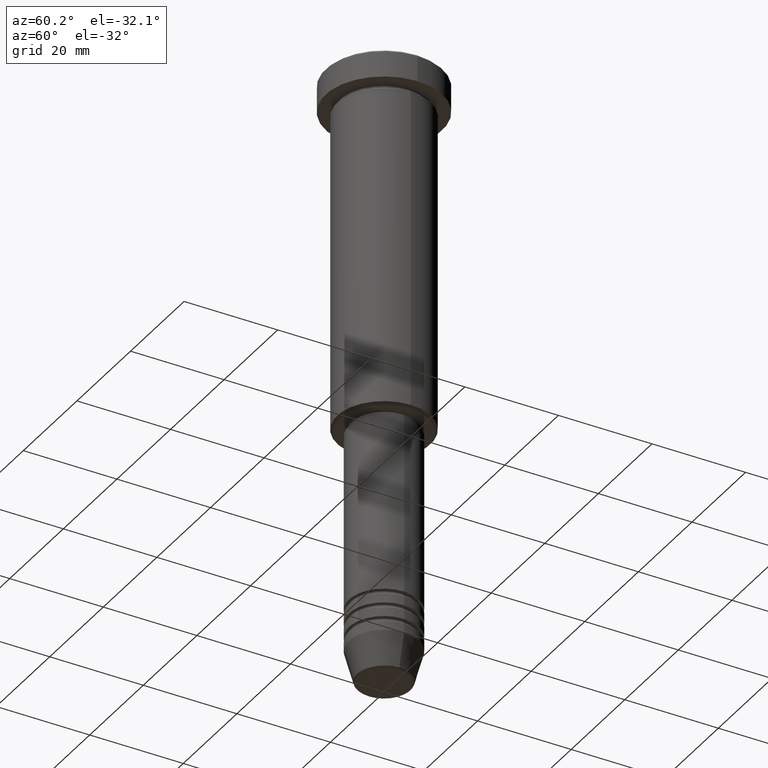
[diagram: clean part render]
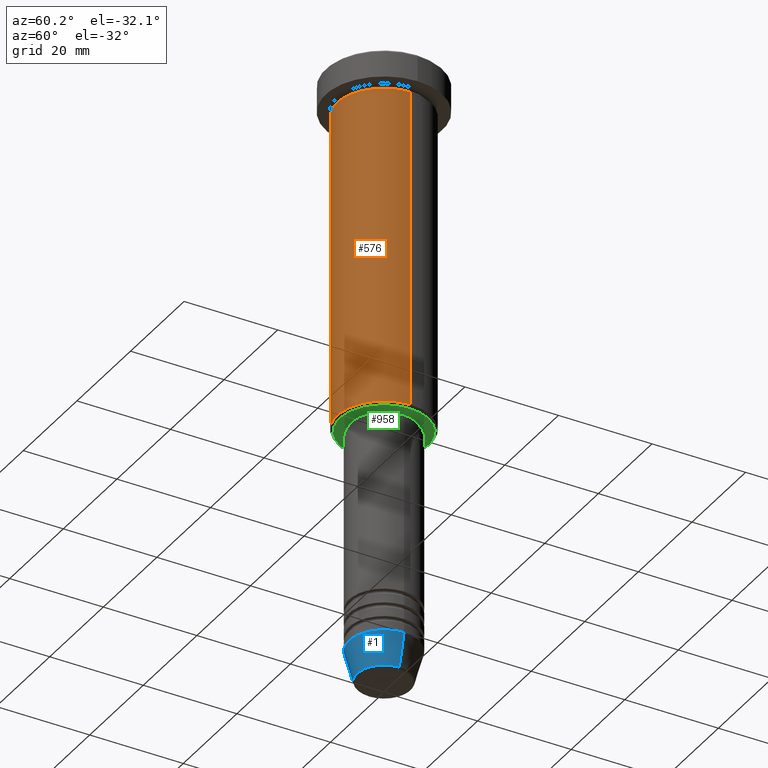
[diagram: same view with three faces highlighted in distinct colors, each labeled with its STEP entity id]
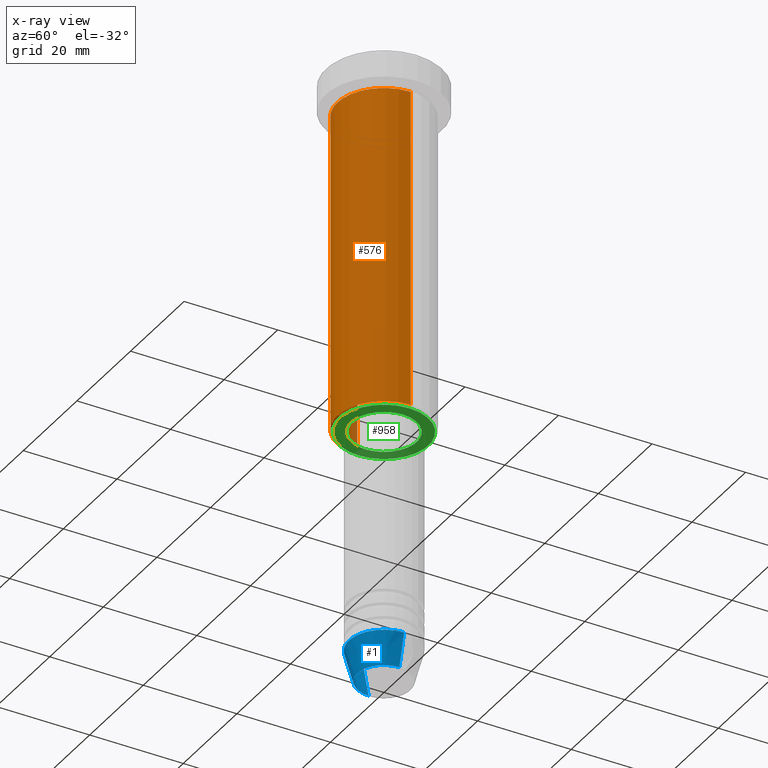
[diagram: x-ray of the same camera — body ghosted, the three highlighted faces saturated]
A machine part, auxiliary view with three faces highlighted in distinct colors.
The next image is the same camera in x-ray (body ghosted, the three faces saturated) — at least one of them is partly hidden behind the body in this view.
Their STEP definitions:

[orange] entity #576 — the highlighted cylindrical surface (partial cylindrical patch) has radius 10 mm, axis along (-0, -0, 1).
#25 = DIRECTION ( 'NONE',  ( -0.000000000000000000, -0.000000000000000000, 1.000000000000000000 ) ) ;
#116 = VERTEX_POINT ( 'NONE', #499 ) ;
#119 = CYLINDRICAL_SURFACE ( 'NONE', #567, 10.00000000000000000 ) ;
#158 = LINE ( 'NONE', #517, #609 ) ;
#166 = CARTESIAN_POINT ( 'NONE',  ( 10.00000000000000000, 0.000000000000000000, -75.50000000000000000 ) ) ;
#173 = AXIS2_PLACEMENT_3D ( 'NONE', #318, #581, #488 ) ;
#191 = DIRECTION ( 'NONE',  ( 1.000000000000000000, 0.000000000000000000, 0.000000000000000000 ) ) ;
#248 = CIRCLE ( 'NONE', #877, 10.00000000000000000 ) ;
#302 = VECTOR ( 'NONE', #901, 1000.000000000000000 ) ;
#306 = EDGE_LOOP ( 'NONE', ( #846, #392, #444, #786 ) ) ;
#318 = CARTESIAN_POINT ( 'NONE',  ( 0.000000000000000000, 0.000000000000000000, -75.50000000000000000 ) ) ;
#392 = ORIENTED_EDGE ( 'NONE', *, *, #696, .T. ) ;
#423 = CARTESIAN_POINT ( 'NONE',  ( 10.00000000000000000, 0.000000000000000000, -6.999999999999996447 ) ) ;
#444 = ORIENTED_EDGE ( 'NONE', *, *, #849, .T. ) ;
#488 = DIRECTION ( 'NONE',  ( -1.000000000000000000, 0.000000000000000000, 0.000000000000000000 ) ) ;
#499 = CARTESIAN_POINT ( 'NONE',  ( -10.00000000000000000, 1.224646799147353256E-15, -75.50000000000000000 ) ) ;
#517 = CARTESIAN_POINT ( 'NONE',  ( 10.00000000000000000, 0.000000000000000000, 0.000000000000000000 ) ) ;
#525 = CARTESIAN_POINT ( 'NONE',  ( -10.00000000000000000, 1.224646799147353256E-15, -6.999999999999996447 ) ) ;
#543 = EDGE_CURVE ( 'NONE', #116, #742, #618, .T. ) ;
#567 = AXIS2_PLACEMENT_3D ( 'NONE', #743, #25, #191 ) ;
#574 = FACE_OUTER_BOUND ( 'NONE', #306, .T. ) ;
#576 = ADVANCED_FACE ( 'NONE', ( #574 ), #119, .T. ) ;
#581 = DIRECTION ( 'NONE',  ( -0.000000000000000000, -0.000000000000000000, 1.000000000000000000 ) ) ;
#609 = VECTOR ( 'NONE', #884, 1000.000000000000000 ) ;
#618 = LINE ( 'NONE', #622, #302 ) ;
#622 = CARTESIAN_POINT ( 'NONE',  ( -10.00000000000000000, 1.224646799147353256E-15, 0.000000000000000000 ) ) ;
#635 = DIRECTION ( 'NONE',  ( -0.000000000000000000, -0.000000000000000000, 1.000000000000000000 ) ) ;
#638 = VERTEX_POINT ( 'NONE', #423 ) ;
#696 = EDGE_CURVE ( 'NONE', #116, #1028, #897, .T. ) ;
#730 = CARTESIAN_POINT ( 'NONE',  ( 0.000000000000000000, 0.000000000000000000, -6.999999999999996447 ) ) ;
#742 = VERTEX_POINT ( 'NONE', #525 ) ;
#743 = CARTESIAN_POINT ( 'NONE',  ( 0.000000000000000000, 0.000000000000000000, 0.000000000000000000 ) ) ;
#786 = ORIENTED_EDGE ( 'NONE', *, *, #1055, .F. ) ;
#846 = ORIENTED_EDGE ( 'NONE', *, *, #543, .F. ) ;
#849 = EDGE_CURVE ( 'NONE', #1028, #638, #158, .T. ) ;
#877 = AXIS2_PLACEMENT_3D ( 'NONE', #730, #635, #993 ) ;
#884 = DIRECTION ( 'NONE',  ( -0.000000000000000000, -0.000000000000000000, 1.000000000000000000 ) ) ;
#897 = CIRCLE ( 'NONE', #173, 10.00000000000000000 ) ;
#901 = DIRECTION ( 'NONE',  ( -0.000000000000000000, -0.000000000000000000, 1.000000000000000000 ) ) ;
#993 = DIRECTION ( 'NONE',  ( 1.000000000000000000, 0.000000000000000000, 0.000000000000000000 ) ) ;
#1028 = VERTEX_POINT ( 'NONE', #166 ) ;
#1055 = EDGE_CURVE ( 'NONE', #742, #638, #248, .T. ) ;

[blue] entity #1 — the highlighted conical surface has half-angle 15 deg.
#1 = ADVANCED_FACE ( 'NONE', ( #1152 ), #660, .T. ) ;
#10 = ORIENTED_EDGE ( 'NONE', *, *, #1117, .F. ) ;
#45 = DIRECTION ( 'NONE',  ( -0.000000000000000000, -0.000000000000000000, 1.000000000000000000 ) ) ;
#126 = DIRECTION ( 'NONE',  ( -0.2588190451025213501, 3.169619151431772337E-17, 0.9659258262890680902 ) ) ;
#202 = VERTEX_POINT ( 'NONE', #1070 ) ;
#218 = DIRECTION ( 'NONE',  ( 1.000000000000000000, 0.000000000000000000, 0.000000000000000000 ) ) ;
#277 = CARTESIAN_POINT ( 'NONE',  ( 5.723655072137191269, 0.000000000000000000, -130.6294095225512422 ) ) ;
#310 = VERTEX_POINT ( 'NONE', #277 ) ;
#401 = EDGE_CURVE ( 'NONE', #310, #202, #1099, .T. ) ;
#415 = AXIS2_PLACEMENT_3D ( 'NONE', #1048, #45, #671 ) ;
#435 = CARTESIAN_POINT ( 'NONE',  ( -5.723655072137191269, 8.097153428560735915E-16, -130.6294095225512422 ) ) ;
#464 = VECTOR ( 'NONE', #126, 1000.000000000000000 ) ;
#507 = VECTOR ( 'NONE', #557, 1000.000000000000000 ) ;
#513 = VERTEX_POINT ( 'NONE', #1079 ) ;
#514 = CARTESIAN_POINT ( 'NONE',  ( 0.000000000000000000, 0.000000000000000000, -124.0000000000000000 ) ) ;
#552 = CARTESIAN_POINT ( 'NONE',  ( 7.500000000000000000, 0.000000000000000000, -124.0000000000000000 ) ) ;
#557 = DIRECTION ( 'NONE',  ( 0.2588190451025213501, 0.000000000000000000, 0.9659258262890680902 ) ) ;
#575 = LINE ( 'NONE', #1112, #464 ) ;
#660 = CONICAL_SURFACE ( 'NONE', #415, 7.500000000000000000, 0.2617993877991500740 ) ;
#671 = DIRECTION ( 'NONE',  ( 1.000000000000000000, 0.000000000000000000, 0.000000000000000000 ) ) ;
#690 = EDGE_CURVE ( 'NONE', #513, #202, #1163, .T. ) ;
#717 = DIRECTION ( 'NONE',  ( -0.000000000000000000, -0.000000000000000000, 1.000000000000000000 ) ) ;
#733 = ORIENTED_EDGE ( 'NONE', *, *, #1033, .T. ) ;
#760 = ORIENTED_EDGE ( 'NONE', *, *, #401, .T. ) ;
#811 = CARTESIAN_POINT ( 'NONE',  ( 0.000000000000000000, 0.000000000000000000, -130.6294095225512422 ) ) ;
#830 = DIRECTION ( 'NONE',  ( 1.000000000000000000, 0.000000000000000000, 0.000000000000000000 ) ) ;
#841 = AXIS2_PLACEMENT_3D ( 'NONE', #811, #717, #830 ) ;
#876 = AXIS2_PLACEMENT_3D ( 'NONE', #514, #1057, #218 ) ;
#920 = VERTEX_POINT ( 'NONE', #435 ) ;
#980 = ORIENTED_EDGE ( 'NONE', *, *, #690, .F. ) ;
#1033 = EDGE_CURVE ( 'NONE', #920, #310, #1067, .T. ) ;
#1048 = CARTESIAN_POINT ( 'NONE',  ( 0.000000000000000000, 0.000000000000000000, -124.0000000000000000 ) ) ;
#1057 = DIRECTION ( 'NONE',  ( -0.000000000000000000, -0.000000000000000000, 1.000000000000000000 ) ) ;
#1067 = CIRCLE ( 'NONE', #841, 5.723655072137191269 ) ;
#1070 = CARTESIAN_POINT ( 'NONE',  ( 7.500000000000000000, 0.000000000000000000, -124.0000000000000000 ) ) ;
#1079 = CARTESIAN_POINT ( 'NONE',  ( -7.500000000000000000, 9.184850993605147944E-16, -124.0000000000000000 ) ) ;
#1099 = LINE ( 'NONE', #552, #507 ) ;
#1112 = CARTESIAN_POINT ( 'NONE',  ( -7.500000000000000000, 9.184850993605147944E-16, -124.0000000000000000 ) ) ;
#1117 = EDGE_CURVE ( 'NONE', #920, #513, #575, .T. ) ;
#1127 = EDGE_LOOP ( 'NONE', ( #10, #733, #760, #980 ) ) ;
#1152 = FACE_OUTER_BOUND ( 'NONE', #1127, .T. ) ;
#1163 = CIRCLE ( 'NONE', #876, 7.500000000000000000 ) ;

[green] entity #958 — the highlighted planar face has unit normal (0, 0, -1).
#15 = AXIS2_PLACEMENT_3D ( 'NONE', #596, #789, #700 ) ;
#37 = CIRCLE ( 'NONE', #399, 9.500000000000008882 ) ;
#58 = ORIENTED_EDGE ( 'NONE', *, *, #957, .T. ) ;
#95 = ORIENTED_EDGE ( 'NONE', *, *, #448, .T. ) ;
#142 = FACE_OUTER_BOUND ( 'NONE', #159, .T. ) ;
#153 = AXIS2_PLACEMENT_3D ( 'NONE', #382, #848, #843 ) ;
#159 = EDGE_LOOP ( 'NONE', ( #58, #870 ) ) ;
#231 = DIRECTION ( 'NONE',  ( 0.000000000000000000, 0.000000000000000000, -1.000000000000000000 ) ) ;
#311 = CARTESIAN_POINT ( 'NONE',  ( -9.500000000000008882, 1.194030629168669864E-15, -75.99999999999998579 ) ) ;
#322 = AXIS2_PLACEMENT_3D ( 'NONE', #692, #604, #862 ) ;
#347 = CARTESIAN_POINT ( 'NONE',  ( -6.999999999999999112, 8.572527594031472204E-16, -75.99999999999998579 ) ) ;
#368 = ORIENTED_EDGE ( 'NONE', *, *, #1075, .T. ) ;
#370 = CARTESIAN_POINT ( 'NONE',  ( 9.500000000000008882, 0.000000000000000000, -75.99999999999998579 ) ) ;
#378 = CIRCLE ( 'NONE', #1042, 6.999999999999999112 ) ;
#382 = CARTESIAN_POINT ( 'NONE',  ( 0.000000000000000000, 0.000000000000000000, -75.99999999999998579 ) ) ;
#385 = EDGE_LOOP ( 'NONE', ( #95, #368 ) ) ;
#399 = AXIS2_PLACEMENT_3D ( 'NONE', #968, #231, #953 ) ;
#411 = FACE_BOUND ( 'NONE', #385, .T. ) ;
#417 = PLANE ( 'NONE',  #15 ) ;
#448 = EDGE_CURVE ( 'NONE', #1071, #740, #378, .T. ) ;
#457 = CARTESIAN_POINT ( 'NONE',  ( 6.999999999999999112, 0.000000000000000000, -75.99999999999998579 ) ) ;
#511 = CIRCLE ( 'NONE', #153, 6.999999999999999112 ) ;
#544 = DIRECTION ( 'NONE',  ( -0.000000000000000000, -0.000000000000000000, 1.000000000000000000 ) ) ;
#596 = CARTESIAN_POINT ( 'NONE',  ( 0.000000000000000000, 10.00000000000000000, -75.99999999999998579 ) ) ;
#604 = DIRECTION ( 'NONE',  ( 0.000000000000000000, 0.000000000000000000, -1.000000000000000000 ) ) ;
#629 = VERTEX_POINT ( 'NONE', #311 ) ;
#634 = DIRECTION ( 'NONE',  ( 1.000000000000000000, 0.000000000000000000, 0.000000000000000000 ) ) ;
#692 = CARTESIAN_POINT ( 'NONE',  ( 0.000000000000000000, 0.000000000000000000, -75.99999999999998579 ) ) ;
#698 = EDGE_CURVE ( 'NONE', #629, #1024, #839, .T. ) ;
#700 = DIRECTION ( 'NONE',  ( -1.000000000000000000, 0.000000000000000000, -0.000000000000000000 ) ) ;
#740 = VERTEX_POINT ( 'NONE', #347 ) ;
#789 = DIRECTION ( 'NONE',  ( 0.000000000000000000, 0.000000000000000000, -1.000000000000000000 ) ) ;
#839 = CIRCLE ( 'NONE', #322, 9.500000000000008882 ) ;
#843 = DIRECTION ( 'NONE',  ( 1.000000000000000000, 0.000000000000000000, 0.000000000000000000 ) ) ;
#848 = DIRECTION ( 'NONE',  ( -0.000000000000000000, -0.000000000000000000, 1.000000000000000000 ) ) ;
#862 = DIRECTION ( 'NONE',  ( -1.000000000000000000, 0.000000000000000000, 0.000000000000000000 ) ) ;
#870 = ORIENTED_EDGE ( 'NONE', *, *, #698, .T. ) ;
#953 = DIRECTION ( 'NONE',  ( -1.000000000000000000, 0.000000000000000000, 0.000000000000000000 ) ) ;
#957 = EDGE_CURVE ( 'NONE', #1024, #629, #37, .T. ) ;
#958 = ADVANCED_FACE ( 'NONE', ( #142, #411 ), #417, .T. ) ;
#968 = CARTESIAN_POINT ( 'NONE',  ( 0.000000000000000000, 0.000000000000000000, -75.99999999999998579 ) ) ;
#978 = CARTESIAN_POINT ( 'NONE',  ( 0.000000000000000000, 0.000000000000000000, -75.99999999999998579 ) ) ;
#1024 = VERTEX_POINT ( 'NONE', #370 ) ;
#1042 = AXIS2_PLACEMENT_3D ( 'NONE', #978, #544, #634 ) ;
#1071 = VERTEX_POINT ( 'NONE', #457 ) ;
#1075 = EDGE_CURVE ( 'NONE', #740, #1071, #511, .T. ) ;